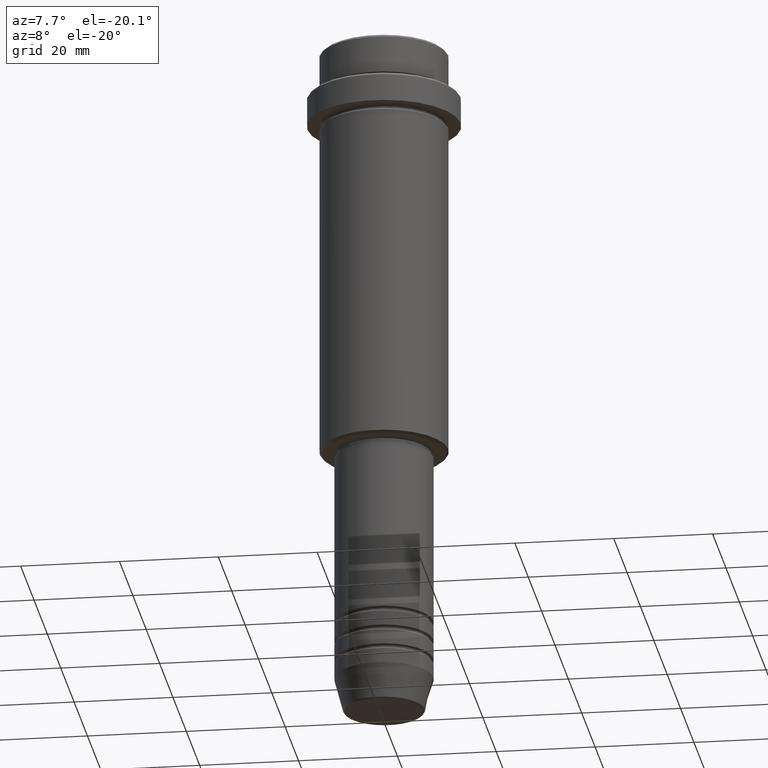
[diagram: clean part render]
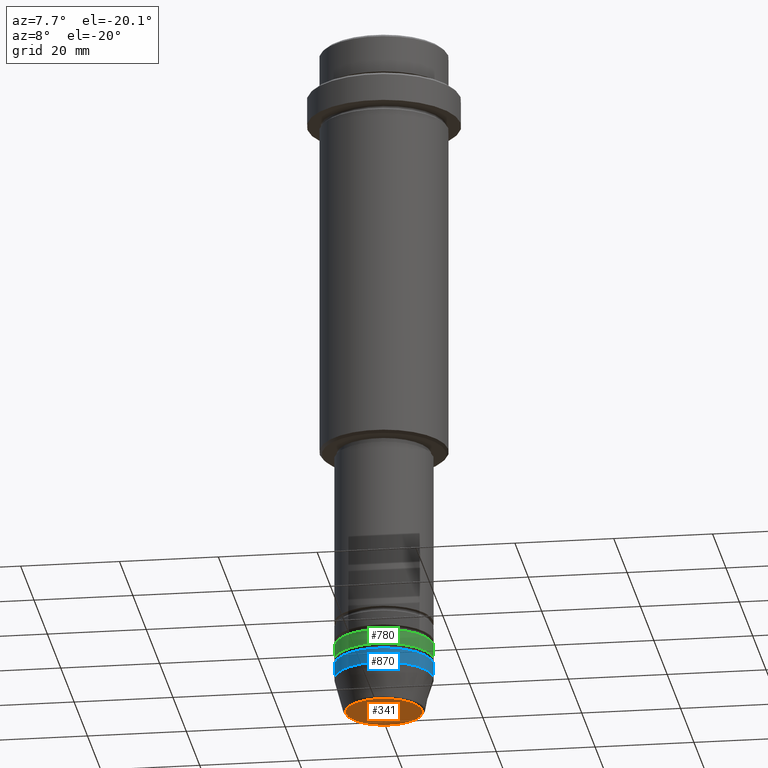
[diagram: same view with three faces highlighted in distinct colors, each labeled with its STEP entity id]
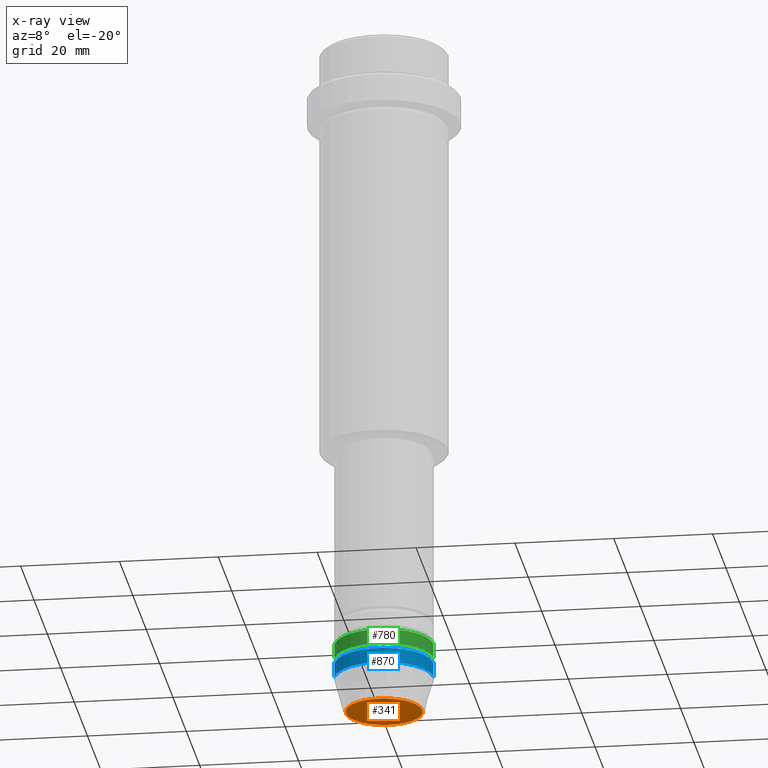
[diagram: x-ray of the same camera — body ghosted, the three highlighted faces saturated]
A machine part, auxiliary view with three faces highlighted in distinct colors.
The next image is the same camera in x-ray (body ghosted, the three faces saturated) — at least one of them is partly hidden behind the body in this view.
Their STEP definitions:

[orange] entity #341 — the highlighted planar face has unit normal (0, -0, 1).
#60 = AXIS2_PLACEMENT_3D ( 'NONE', #190, #512, #1066 ) ;
#190 = CARTESIAN_POINT ( 'NONE',  ( 0.000000000000000000, 0.000000000000000000, -140.0000000000000000 ) ) ;
#266 = CIRCLE ( 'NONE', #500, 7.740692158992656502 ) ;
#324 = ORIENTED_EDGE ( 'NONE', *, *, #1120, .T. ) ;
#335 = CIRCLE ( 'NONE', #60, 7.740692158992656502 ) ;
#341 = ADVANCED_FACE ( 'NONE', ( #448 ), #466, .F. ) ;
#350 = CARTESIAN_POINT ( 'NONE',  ( 0.000000000000000000, 0.000000000000000000, -140.0000000000000000 ) ) ;
#371 = VERTEX_POINT ( 'NONE', #929 ) ;
#448 = FACE_OUTER_BOUND ( 'NONE', #944, .T. ) ;
#466 = PLANE ( 'NONE',  #1260 ) ;
#500 = AXIS2_PLACEMENT_3D ( 'NONE', #599, #510, #1287 ) ;
#510 = DIRECTION ( 'NONE',  ( 0.000000000000000000, 0.000000000000000000, -1.000000000000000000 ) ) ;
#512 = DIRECTION ( 'NONE',  ( 0.000000000000000000, 0.000000000000000000, -1.000000000000000000 ) ) ;
#555 = EDGE_CURVE ( 'NONE', #371, #1213, #335, .T. ) ;
#599 = CARTESIAN_POINT ( 'NONE',  ( 0.000000000000000000, 0.000000000000000000, -140.0000000000000000 ) ) ;
#775 = CARTESIAN_POINT ( 'NONE',  ( -7.740692158992656502, 9.775343368540041107E-16, -140.0000000000000000 ) ) ;
#929 = CARTESIAN_POINT ( 'NONE',  ( 7.740692158992656502, 0.000000000000000000, -140.0000000000000000 ) ) ;
#944 = EDGE_LOOP ( 'NONE', ( #1057, #324 ) ) ;
#1057 = ORIENTED_EDGE ( 'NONE', *, *, #555, .T. ) ;
#1066 = DIRECTION ( 'NONE',  ( 1.000000000000000000, 0.000000000000000000, 0.000000000000000000 ) ) ;
#1118 = DIRECTION ( 'NONE',  ( 0.000000000000000000, -0.000000000000000000, 1.000000000000000000 ) ) ;
#1120 = EDGE_CURVE ( 'NONE', #1213, #371, #266, .T. ) ;
#1139 = DIRECTION ( 'NONE',  ( 1.000000000000000000, 0.000000000000000000, 0.000000000000000000 ) ) ;
#1213 = VERTEX_POINT ( 'NONE', #775 ) ;
#1260 = AXIS2_PLACEMENT_3D ( 'NONE', #350, #1118, #1139 ) ;
#1287 = DIRECTION ( 'NONE',  ( 1.000000000000000000, 0.000000000000000000, 0.000000000000000000 ) ) ;

[blue] entity #870 — the highlighted cylindrical surface (partial cylindrical patch) has radius 10 mm, axis along (-0, -0, 1).
#9 = EDGE_CURVE ( 'NONE', #718, #1047, #219, .T. ) ;
#38 = DIRECTION ( 'NONE',  ( 1.000000000000000000, 0.000000000000000000, 0.000000000000000000 ) ) ;
#83 = DIRECTION ( 'NONE',  ( -0.000000000000000000, -0.000000000000000000, 1.000000000000000000 ) ) ;
#106 = ORIENTED_EDGE ( 'NONE', *, *, #633, .T. ) ;
#143 = CARTESIAN_POINT ( 'NONE',  ( -10.00000000000000000, 1.224646799147353256E-15, -130.0000000000000000 ) ) ;
#219 = CIRCLE ( 'NONE', #308, 10.00000000000000000 ) ;
#220 = LINE ( 'NONE', #296, #488 ) ;
#258 = ORIENTED_EDGE ( 'NONE', *, *, #908, .F. ) ;
#281 = CARTESIAN_POINT ( 'NONE',  ( -10.00000000000000000, 1.224646799147353256E-15, 0.000000000000000000 ) ) ;
#289 = CYLINDRICAL_SURFACE ( 'NONE', #662, 10.00000000000000000 ) ;
#296 = CARTESIAN_POINT ( 'NONE',  ( 10.00000000000000000, 0.000000000000000000, 0.000000000000000000 ) ) ;
#308 = AXIS2_PLACEMENT_3D ( 'NONE', #919, #1244, #38 ) ;
#485 = VERTEX_POINT ( 'NONE', #1013 ) ;
#488 = VECTOR ( 'NONE', #1072, 1000.000000000000000 ) ;
#499 = DIRECTION ( 'NONE',  ( -0.000000000000000000, -0.000000000000000000, 1.000000000000000000 ) ) ;
#507 = DIRECTION ( 'NONE',  ( -0.000000000000000000, -0.000000000000000000, 1.000000000000000000 ) ) ;
#601 = EDGE_LOOP ( 'NONE', ( #258, #106, #1017, #1042 ) ) ;
#605 = CARTESIAN_POINT ( 'NONE',  ( 10.00000000000000000, 0.000000000000000000, -130.0000000000000000 ) ) ;
#621 = CARTESIAN_POINT ( 'NONE',  ( 10.00000000000000000, 0.000000000000000000, -133.0000000000000000 ) ) ;
#633 = EDGE_CURVE ( 'NONE', #485, #827, #1304, .T. ) ;
#639 = LINE ( 'NONE', #281, #984 ) ;
#660 = EDGE_CURVE ( 'NONE', #827, #1047, #220, .T. ) ;
#662 = AXIS2_PLACEMENT_3D ( 'NONE', #748, #507, #1083 ) ;
#718 = VERTEX_POINT ( 'NONE', #143 ) ;
#748 = CARTESIAN_POINT ( 'NONE',  ( 0.000000000000000000, 0.000000000000000000, 0.000000000000000000 ) ) ;
#827 = VERTEX_POINT ( 'NONE', #621 ) ;
#848 = DIRECTION ( 'NONE',  ( 1.000000000000000000, 0.000000000000000000, 0.000000000000000000 ) ) ;
#857 = FACE_OUTER_BOUND ( 'NONE', #601, .T. ) ;
#870 = ADVANCED_FACE ( 'NONE', ( #857 ), #289, .T. ) ;
#908 = EDGE_CURVE ( 'NONE', #485, #718, #639, .T. ) ;
#919 = CARTESIAN_POINT ( 'NONE',  ( 0.000000000000000000, 0.000000000000000000, -130.0000000000000000 ) ) ;
#984 = VECTOR ( 'NONE', #499, 1000.000000000000000 ) ;
#1013 = CARTESIAN_POINT ( 'NONE',  ( -10.00000000000000000, 1.224646799147353256E-15, -133.0000000000000000 ) ) ;
#1017 = ORIENTED_EDGE ( 'NONE', *, *, #660, .T. ) ;
#1042 = ORIENTED_EDGE ( 'NONE', *, *, #9, .F. ) ;
#1047 = VERTEX_POINT ( 'NONE', #605 ) ;
#1072 = DIRECTION ( 'NONE',  ( -0.000000000000000000, -0.000000000000000000, 1.000000000000000000 ) ) ;
#1083 = DIRECTION ( 'NONE',  ( 1.000000000000000000, 0.000000000000000000, 0.000000000000000000 ) ) ;
#1244 = DIRECTION ( 'NONE',  ( -0.000000000000000000, -0.000000000000000000, 1.000000000000000000 ) ) ;
#1304 = CIRCLE ( 'NONE', #1366, 10.00000000000000000 ) ;
#1366 = AXIS2_PLACEMENT_3D ( 'NONE', #1383, #83, #848 ) ;
#1383 = CARTESIAN_POINT ( 'NONE',  ( 0.000000000000000000, 0.000000000000000000, -133.0000000000000000 ) ) ;

[green] entity #780 — the highlighted cylindrical surface (partial cylindrical patch) has radius 10 mm, axis along (-0, -0, 1).
#74 = CIRCLE ( 'NONE', #717, 10.00000000000000000 ) ;
#93 = ORIENTED_EDGE ( 'NONE', *, *, #545, .F. ) ;
#147 = AXIS2_PLACEMENT_3D ( 'NONE', #636, #1093, #710 ) ;
#155 = FACE_OUTER_BOUND ( 'NONE', #352, .T. ) ;
#167 = LINE ( 'NONE', #278, #762 ) ;
#182 = EDGE_CURVE ( 'NONE', #1226, #1196, #167, .T. ) ;
#221 = VERTEX_POINT ( 'NONE', #1177 ) ;
#231 = CIRCLE ( 'NONE', #147, 10.00000000000000000 ) ;
#278 = CARTESIAN_POINT ( 'NONE',  ( 10.00000000000000000, 0.000000000000000000, 0.000000000000000000 ) ) ;
#295 = DIRECTION ( 'NONE',  ( -0.000000000000000000, -0.000000000000000000, 1.000000000000000000 ) ) ;
#352 = EDGE_LOOP ( 'NONE', ( #925, #558, #881, #93 ) ) ;
#489 = DIRECTION ( 'NONE',  ( 1.000000000000000000, 0.000000000000000000, 0.000000000000000000 ) ) ;
#493 = DIRECTION ( 'NONE',  ( -0.000000000000000000, -0.000000000000000000, 1.000000000000000000 ) ) ;
#545 = EDGE_CURVE ( 'NONE', #221, #1196, #231, .T. ) ;
#552 = CARTESIAN_POINT ( 'NONE',  ( 10.00000000000000000, 0.000000000000000000, -128.9999999999998863 ) ) ;
#558 = ORIENTED_EDGE ( 'NONE', *, *, #1058, .T. ) ;
#580 = CARTESIAN_POINT ( 'NONE',  ( -10.00000000000000000, 1.224646799147353256E-15, -128.9999999999998863 ) ) ;
#587 = EDGE_CURVE ( 'NONE', #1029, #221, #1091, .T. ) ;
#631 = DIRECTION ( 'NONE',  ( -0.000000000000000000, -0.000000000000000000, 1.000000000000000000 ) ) ;
#636 = CARTESIAN_POINT ( 'NONE',  ( 0.000000000000000000, 0.000000000000000000, -125.9999999999998863 ) ) ;
#701 = CARTESIAN_POINT ( 'NONE',  ( 0.000000000000000000, 0.000000000000000000, 0.000000000000000000 ) ) ;
#702 = VECTOR ( 'NONE', #631, 1000.000000000000000 ) ;
#710 = DIRECTION ( 'NONE',  ( 1.000000000000000000, 0.000000000000000000, 0.000000000000000000 ) ) ;
#717 = AXIS2_PLACEMENT_3D ( 'NONE', #1071, #295, #489 ) ;
#730 = CYLINDRICAL_SURFACE ( 'NONE', #1290, 10.00000000000000000 ) ;
#745 = CARTESIAN_POINT ( 'NONE',  ( -10.00000000000000000, 1.224646799147353256E-15, 0.000000000000000000 ) ) ;
#762 = VECTOR ( 'NONE', #850, 1000.000000000000000 ) ;
#780 = ADVANCED_FACE ( 'NONE', ( #155 ), #730, .T. ) ;
#818 = DIRECTION ( 'NONE',  ( 1.000000000000000000, 0.000000000000000000, 0.000000000000000000 ) ) ;
#850 = DIRECTION ( 'NONE',  ( -0.000000000000000000, -0.000000000000000000, 1.000000000000000000 ) ) ;
#881 = ORIENTED_EDGE ( 'NONE', *, *, #182, .T. ) ;
#925 = ORIENTED_EDGE ( 'NONE', *, *, #587, .F. ) ;
#1029 = VERTEX_POINT ( 'NONE', #580 ) ;
#1058 = EDGE_CURVE ( 'NONE', #1029, #1226, #74, .T. ) ;
#1071 = CARTESIAN_POINT ( 'NONE',  ( 0.000000000000000000, 0.000000000000000000, -128.9999999999998863 ) ) ;
#1091 = LINE ( 'NONE', #745, #702 ) ;
#1093 = DIRECTION ( 'NONE',  ( -0.000000000000000000, -0.000000000000000000, 1.000000000000000000 ) ) ;
#1177 = CARTESIAN_POINT ( 'NONE',  ( -10.00000000000000000, 1.224646799147353256E-15, -125.9999999999998863 ) ) ;
#1196 = VERTEX_POINT ( 'NONE', #1325 ) ;
#1226 = VERTEX_POINT ( 'NONE', #552 ) ;
#1290 = AXIS2_PLACEMENT_3D ( 'NONE', #701, #493, #818 ) ;
#1325 = CARTESIAN_POINT ( 'NONE',  ( 10.00000000000000000, 0.000000000000000000, -125.9999999999998863 ) ) ;